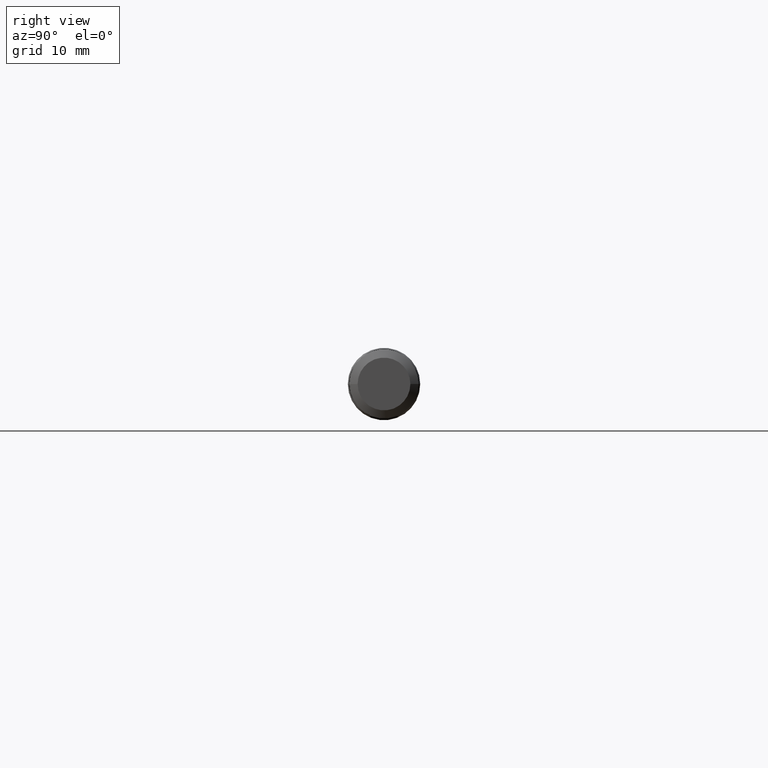
[diagram: clean part render]
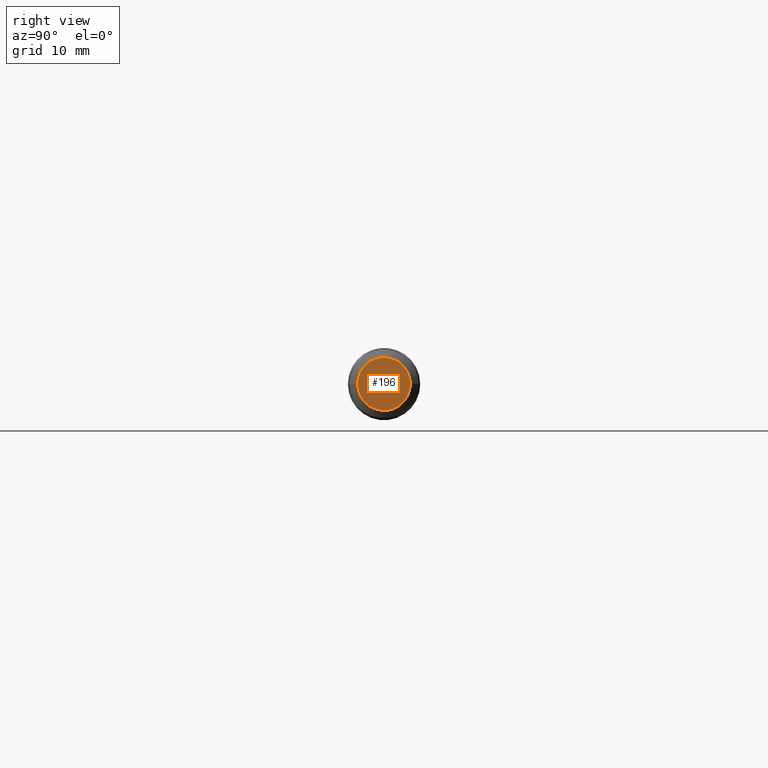
[diagram: same view with one face highlighted and labeled with its STEP entity id]
A machine part, right view. The second image highlights one B-rep face of the part: STEP entity #196.
In plain terms, the highlighted planar face has unit normal (-1, 0, -0).
Its self-contained STEP definition (entity closure, byte-faithful):
#39 = PLANE ( 'NONE',  #264 ) ;
#44 = DIRECTION ( 'NONE',  ( -1.000000000000000000, 0.0000000000000000000, -0.0000000000000000000 ) ) ;
#53 = FACE_OUTER_BOUND ( 'NONE', #311, .T. ) ;
#196 = ADVANCED_FACE ( 'NONE', ( #53 ), #39, .F. ) ;
#264 = AXIS2_PLACEMENT_3D ( 'NONE', #342, #44, #461 ) ;
#285 = VERTEX_POINT ( 'NONE', #782 ) ;
#288 = EDGE_CURVE ( 'NONE', #285, #891, #335, .T. ) ;
#311 = EDGE_LOOP ( 'NONE', ( #347, #325 ) ) ;
#325 = ORIENTED_EDGE ( 'NONE', *, *, #402, .T. ) ;
#335 = CIRCLE ( 'NONE', #817, 0.09093797018512160546 ) ;
#341 = AXIS2_PLACEMENT_3D ( 'NONE', #407, #400, #397 ) ;
#342 = CARTESIAN_POINT ( 'NONE',  ( 2.497537800000000363, 0.2500000000000000000, -0.2999999999999999889 ) ) ;
#347 = ORIENTED_EDGE ( 'NONE', *, *, #288, .T. ) ;
#397 = DIRECTION ( 'NONE',  ( 0.0000000000000000000, 0.0000000000000000000, 1.000000000000000000 ) ) ;
#400 = DIRECTION ( 'NONE',  ( 1.000000000000000000, 0.0000000000000000000, 0.0000000000000000000 ) ) ;
#402 = EDGE_CURVE ( 'NONE', #891, #285, #518, .T. ) ;
#407 = CARTESIAN_POINT ( 'NONE',  ( 2.497537800000000363, -7.588730369825805390E-19, 0.0000000000000000000 ) ) ;
#428 = CARTESIAN_POINT ( 'NONE',  ( 2.497537800000000363, -7.588730369825805390E-19, 0.0000000000000000000 ) ) ;
#440 = DIRECTION ( 'NONE',  ( 1.000000000000000000, 0.0000000000000000000, 0.0000000000000000000 ) ) ;
#461 = DIRECTION ( 'NONE',  ( -0.0000000000000000000, 0.0000000000000000000, 1.000000000000000000 ) ) ;
#467 = DIRECTION ( 'NONE',  ( 0.0000000000000000000, 0.0000000000000000000, 1.000000000000000000 ) ) ;
#518 = CIRCLE ( 'NONE', #341, 0.09093797018512160546 ) ;
#782 = CARTESIAN_POINT ( 'NONE',  ( 2.497537800000000363, -0.09093797018512160546, 0.0000000000000000000 ) ) ;
#817 = AXIS2_PLACEMENT_3D ( 'NONE', #428, #440, #467 ) ;
#891 = VERTEX_POINT ( 'NONE', #985 ) ;
#985 = CARTESIAN_POINT ( 'NONE',  ( 2.497537800000000363, 0.09093797018512160546, 1.113668941081666152E-17 ) ) ;